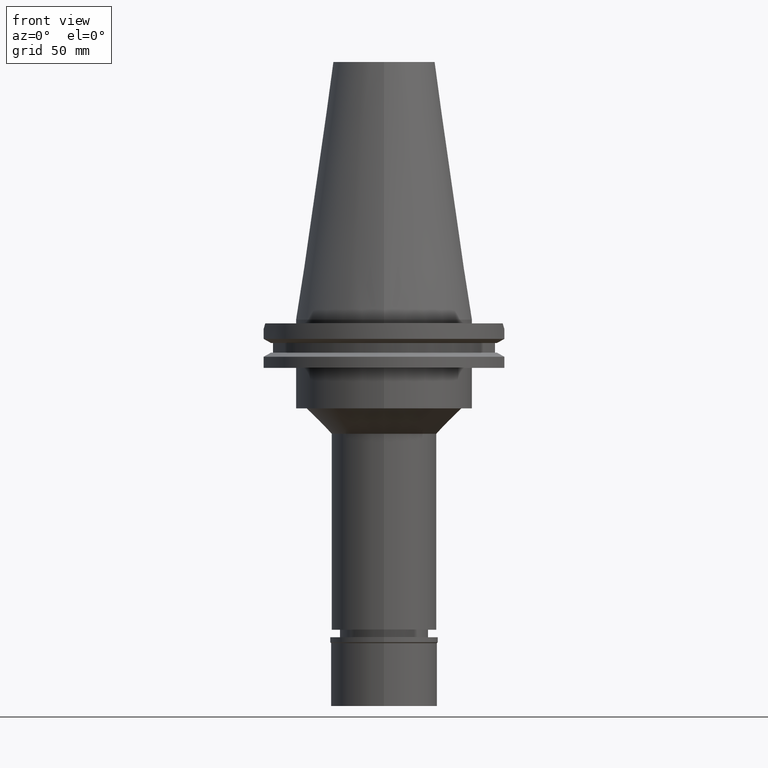
[diagram: clean part render]
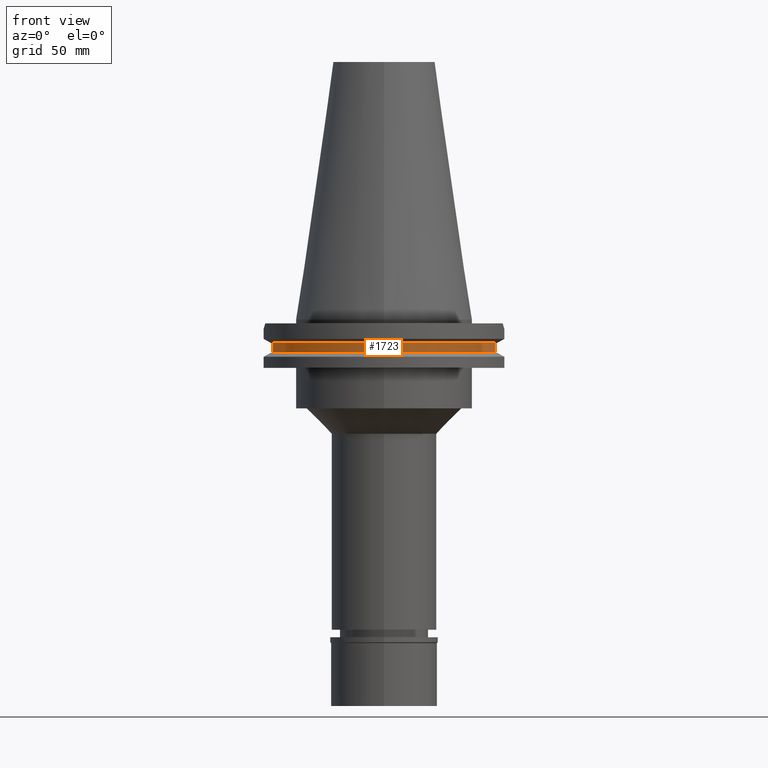
[diagram: same view with one face highlighted and labeled with its STEP entity id]
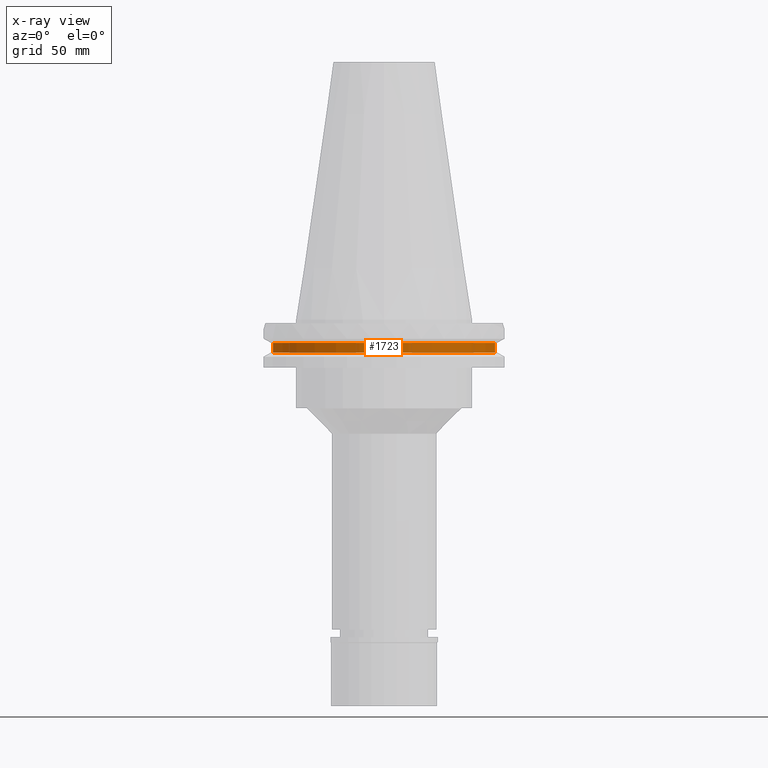
[diagram: x-ray of the same camera — body ghosted, the highlighted face saturated]
A machine part, front view. The second image highlights one B-rep face of the part: STEP entity #1723.
The next image is the same camera in x-ray: the body ghosted, the highlighted face saturated — about 0% of this face is hidden behind the body in this view.
In plain terms, the highlighted cylindrical surface (partial cylindrical patch) has radius 45.645 mm, axis along (0, 0, -1).
Its self-contained STEP definition (entity closure, byte-faithful):
#42 = AXIS2_PLACEMENT_3D ( 'NONE', #2423, #2439, #359 ) ;
#74 = LINE ( 'NONE', #1627, #1717 ) ;
#93 = DIRECTION ( 'NONE',  ( 0.0000000000000000000, 0.0000000000000000000, -1.000000000000000000 ) ) ;
#99 = VECTOR ( 'NONE', #93, 1000.000000000000000 ) ;
#112 = DIRECTION ( 'NONE',  ( 0.0000000000000000000, 0.0000000000000000000, 1.000000000000000000 ) ) ;
#190 = CARTESIAN_POINT ( 'NONE',  ( 0.0000000000000000000, 2.617682533176999626E-14, -13.04749999999999943 ) ) ;
#285 = EDGE_CURVE ( 'NONE', #2961, #1228, #286, .T. ) ;
#286 = LINE ( 'NONE', #1454, #99 ) ;
#359 = DIRECTION ( 'NONE',  ( 0.0000000000000000000, -1.000000000000000000, 0.0000000000000000000 ) ) ;
#622 = CYLINDRICAL_SURFACE ( 'NONE', #42, 45.64499999999999602 ) ;
#680 = EDGE_CURVE ( 'NONE', #888, #801, #74, .T. ) ;
#701 = EDGE_LOOP ( 'NONE', ( #714, #1118, #1833, #2085 ) ) ;
#714 = ORIENTED_EDGE ( 'NONE', *, *, #680, .F. ) ;
#801 = VERTEX_POINT ( 'NONE', #819 ) ;
#816 = CARTESIAN_POINT ( 'NONE',  ( 43.76795631508999662, -12.95500000000000007, -13.04749999999999943 ) ) ;
#819 = CARTESIAN_POINT ( 'NONE',  ( -43.76795631508999662, -12.95500000000000007, -9.207499999999999574 ) ) ;
#888 = VERTEX_POINT ( 'NONE', #2757 ) ;
#930 = AXIS2_PLACEMENT_3D ( 'NONE', #1763, #2560, #2508 ) ;
#1118 = ORIENTED_EDGE ( 'NONE', *, *, #2536, .T. ) ;
#1154 = CARTESIAN_POINT ( 'NONE',  ( 43.76795631508999662, -12.95500000000000007, -9.207499999999999574 ) ) ;
#1228 = VERTEX_POINT ( 'NONE', #816 ) ;
#1388 = AXIS2_PLACEMENT_3D ( 'NONE', #190, #1981, #1436 ) ;
#1436 = DIRECTION ( 'NONE',  ( 0.0000000000000000000, -1.000000000000000000, 0.0000000000000000000 ) ) ;
#1454 = CARTESIAN_POINT ( 'NONE',  ( 43.76795631508999662, -12.95500000000000007, -9.207499999999999574 ) ) ;
#1499 = EDGE_CURVE ( 'NONE', #2961, #801, #2405, .T. ) ;
#1627 = CARTESIAN_POINT ( 'NONE',  ( -43.76795631508999662, -12.95500000000000007, -13.04749999999999943 ) ) ;
#1661 = FACE_OUTER_BOUND ( 'NONE', #701, .T. ) ;
#1717 = VECTOR ( 'NONE', #112, 1000.000000000000000 ) ;
#1723 = ADVANCED_FACE ( 'NONE', ( #1661 ), #622, .T. ) ;
#1763 = CARTESIAN_POINT ( 'NONE',  ( 0.0000000000000000000, 2.617682533176999626E-14, -9.207499999999999574 ) ) ;
#1833 = ORIENTED_EDGE ( 'NONE', *, *, #285, .F. ) ;
#1981 = DIRECTION ( 'NONE',  ( 0.0000000000000000000, 0.0000000000000000000, 1.000000000000000000 ) ) ;
#2085 = ORIENTED_EDGE ( 'NONE', *, *, #1499, .T. ) ;
#2313 = CIRCLE ( 'NONE', #1388, 45.64499999999999602 ) ;
#2405 = CIRCLE ( 'NONE', #930, 45.64500000000001734 ) ;
#2423 = CARTESIAN_POINT ( 'NONE',  ( 0.0000000000000000000, 2.617682533176999626E-14, 113.7500000000000000 ) ) ;
#2439 = DIRECTION ( 'NONE',  ( 0.0000000000000000000, 0.0000000000000000000, -1.000000000000000000 ) ) ;
#2508 = DIRECTION ( 'NONE',  ( 0.9588773428654665532, -0.2838207908861898887, 0.0000000000000000000 ) ) ;
#2536 = EDGE_CURVE ( 'NONE', #888, #1228, #2313, .T. ) ;
#2560 = DIRECTION ( 'NONE',  ( 0.0000000000000000000, 0.0000000000000000000, -1.000000000000000000 ) ) ;
#2757 = CARTESIAN_POINT ( 'NONE',  ( -43.76795631508999662, -12.95500000000000007, -13.04749999999999943 ) ) ;
#2961 = VERTEX_POINT ( 'NONE', #1154 ) ;